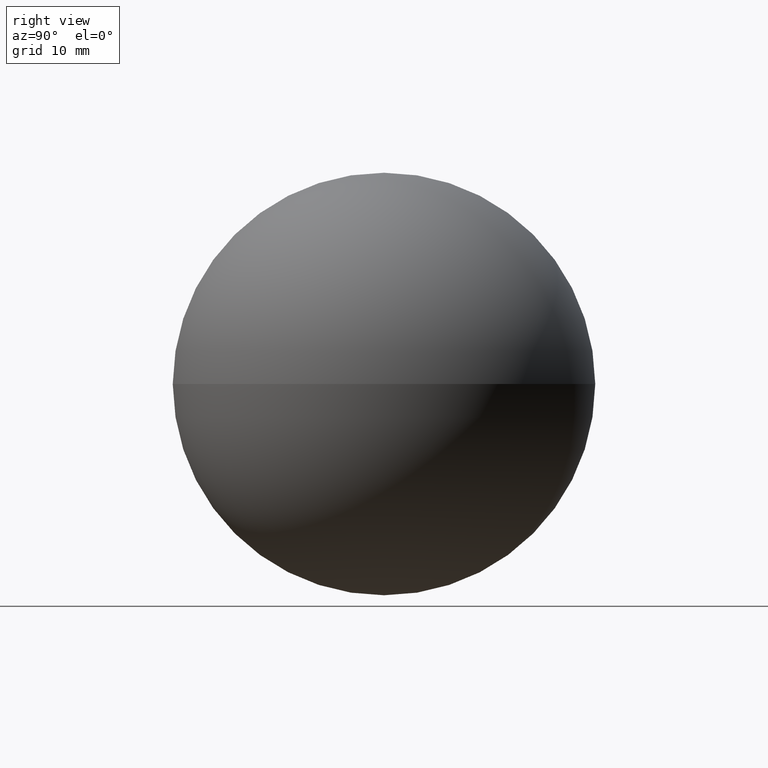
[diagram: clean part render]
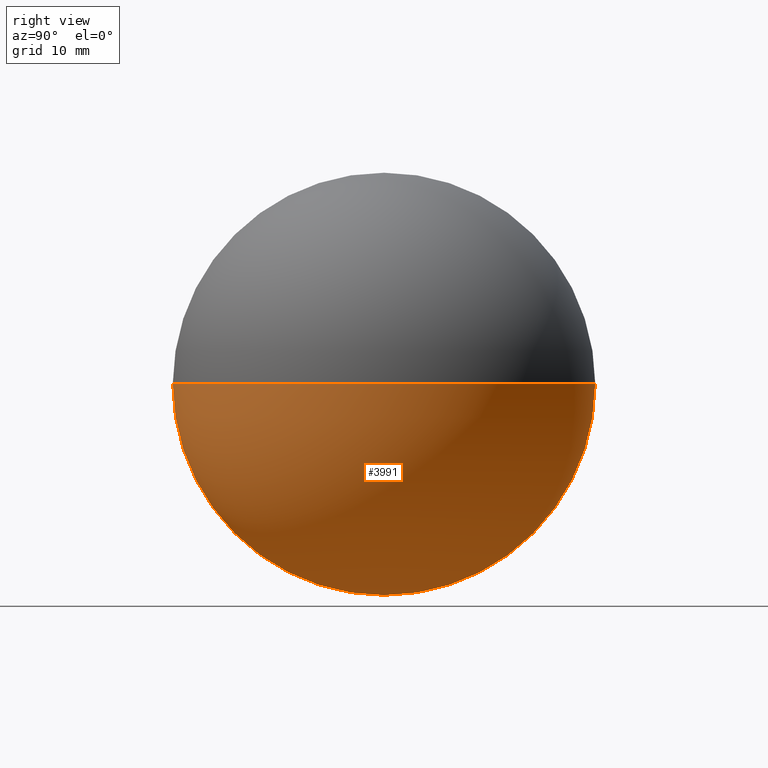
[diagram: same view with one face highlighted and labeled with its STEP entity id]
A machine part, right view. The second image highlights one B-rep face of the part: STEP entity #3991.
In plain terms, the highlighted spherical surface has radius 25 mm.
Its self-contained STEP definition (entity closure, byte-faithful):
#290 = FACE_OUTER_BOUND ( 'NONE', #6883, .T. ) ;
#825 = CARTESIAN_POINT ( 'NONE',  ( 0.0000000000000000000, 0.0000000000000000000, 0.0000000000000000000 ) ) ;
#1760 = AXIS2_PLACEMENT_3D ( 'NONE', #6378, #1975, #8518 ) ;
#1975 = DIRECTION ( 'NONE',  ( -0.0000000000000000000, 0.0000000000000000000, -1.000000000000000000 ) ) ;
#2231 = CIRCLE ( 'NONE', #9102, 25.00000000000000000 ) ;
#2341 = DIRECTION ( 'NONE',  ( -1.224646799147353200E-016, 1.499759782661853000E-032, 1.000000000000000000 ) ) ;
#2370 = CARTESIAN_POINT ( 'NONE',  ( 1.530808498934181900E-015, 25.00000000000000000, 0.0000000000000000000 ) ) ;
#2509 = VERTEX_POINT ( 'NONE', #6897 ) ;
#2603 = AXIS2_PLACEMENT_3D ( 'NONE', #7612, #3307, #3269 ) ;
#3175 = SPHERICAL_SURFACE ( 'NONE', #2603, 25.00000000000000000 ) ;
#3269 = DIRECTION ( 'NONE',  ( -1.000000000000000000, 1.224646799147349300E-016, 0.0000000000000000000 ) ) ;
#3307 = DIRECTION ( 'NONE',  ( 0.0000000000000000000, 0.0000000000000000000, 1.000000000000000000 ) ) ;
#3764 = ORIENTED_EDGE ( 'NONE', *, *, #5393, .F. ) ;
#3991 = ADVANCED_FACE ( 'NONE', ( #290 ), #3175, .T. ) ;
#4390 = ORIENTED_EDGE ( 'NONE', *, *, #9509, .T. ) ;
#4399 = CIRCLE ( 'NONE', #1760, 25.00000000000000000 ) ;
#4630 = DIRECTION ( 'NONE',  ( 1.000000000000000000, 0.0000000000000000000, 1.224646799147353200E-016 ) ) ;
#5393 = EDGE_CURVE ( 'NONE', #2509, #8258, #2231, .T. ) ;
#6378 = CARTESIAN_POINT ( 'NONE',  ( 0.0000000000000000000, 0.0000000000000000000, 0.0000000000000000000 ) ) ;
#6883 = EDGE_LOOP ( 'NONE', ( #3764, #4390 ) ) ;
#6897 = CARTESIAN_POINT ( 'NONE',  ( -4.592425496802564100E-015, -25.00000000000000000, 0.0000000000000000000 ) ) ;
#7612 = CARTESIAN_POINT ( 'NONE',  ( 0.0000000000000000000, 0.0000000000000000000, 0.0000000000000000000 ) ) ;
#8258 = VERTEX_POINT ( 'NONE', #2370 ) ;
#8518 = DIRECTION ( 'NONE',  ( -1.000000000000000000, 0.0000000000000000000, 0.0000000000000000000 ) ) ;
#9102 = AXIS2_PLACEMENT_3D ( 'NONE', #825, #2341, #4630 ) ;
#9509 = EDGE_CURVE ( 'NONE', #2509, #8258, #4399, .T. ) ;